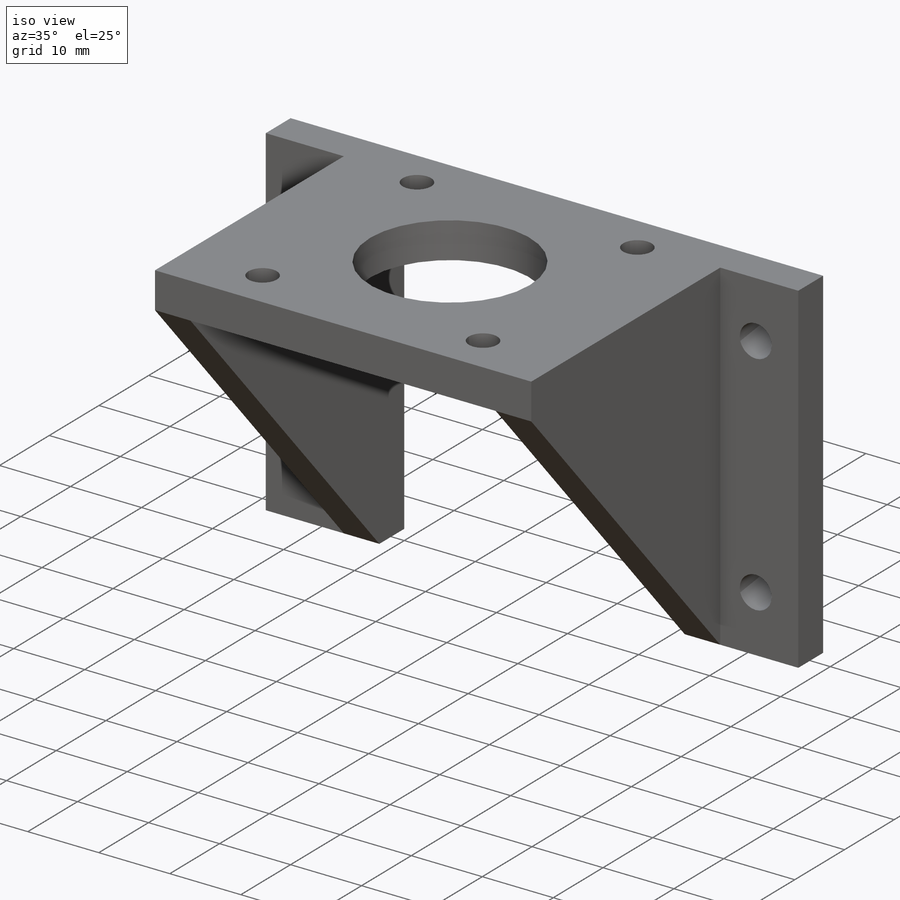
[diagram: iso view]
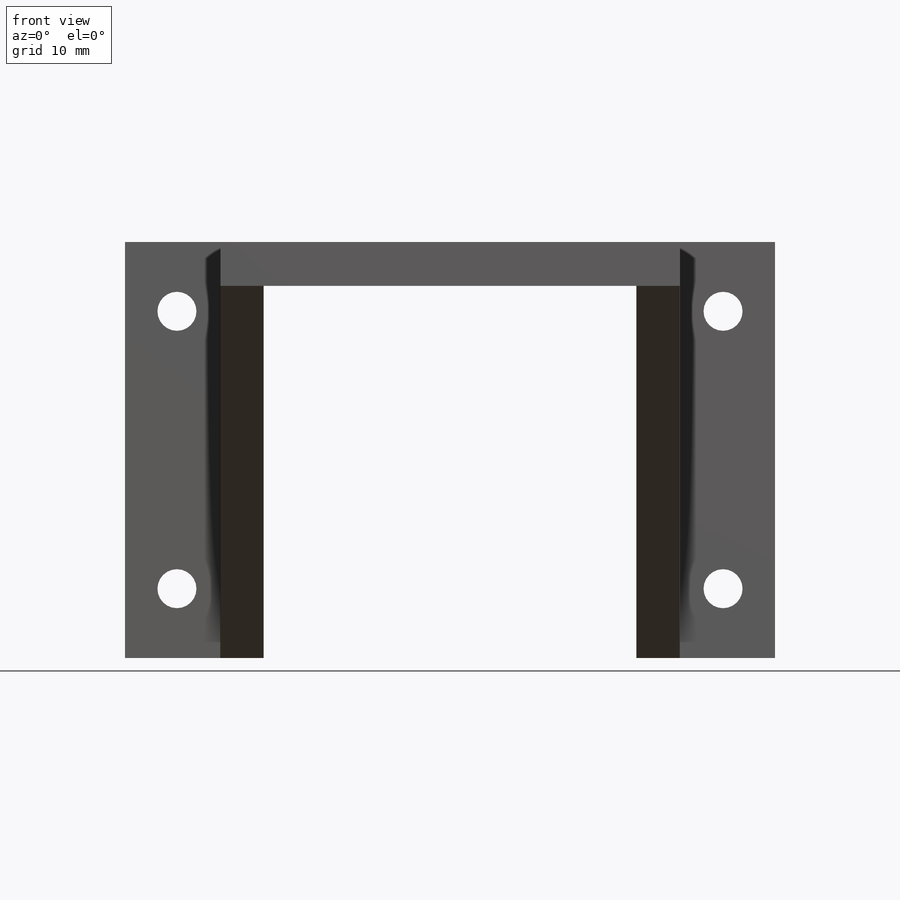
[diagram: front view]
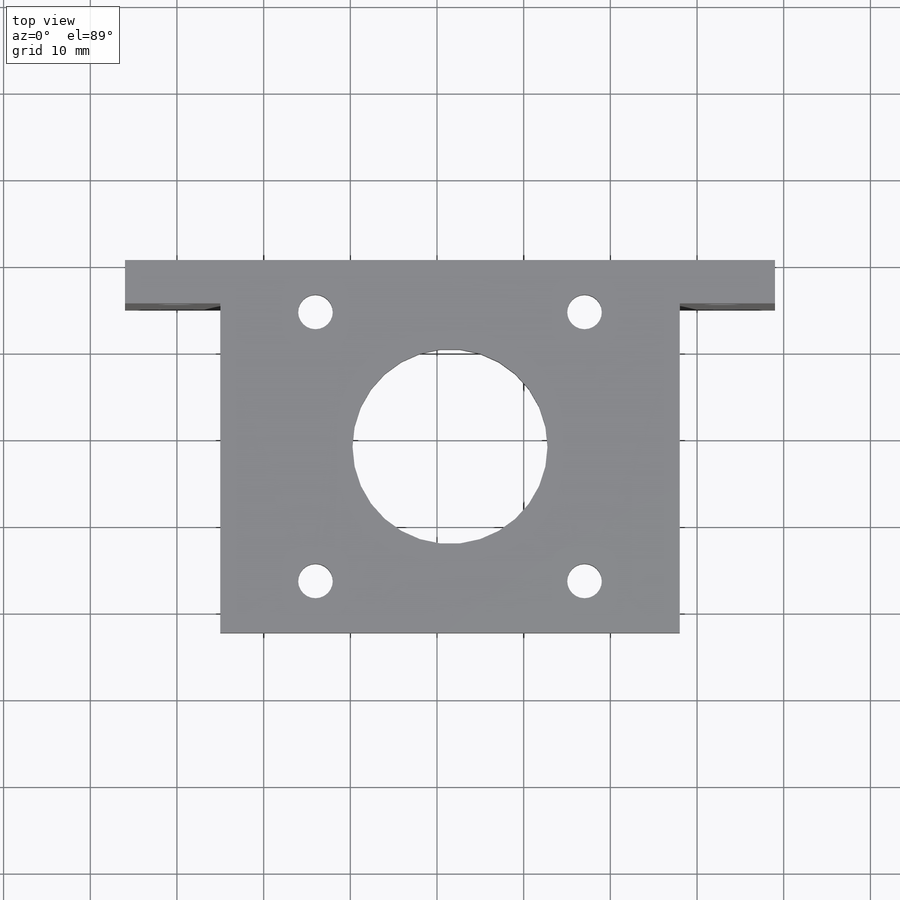
[diagram: top view]
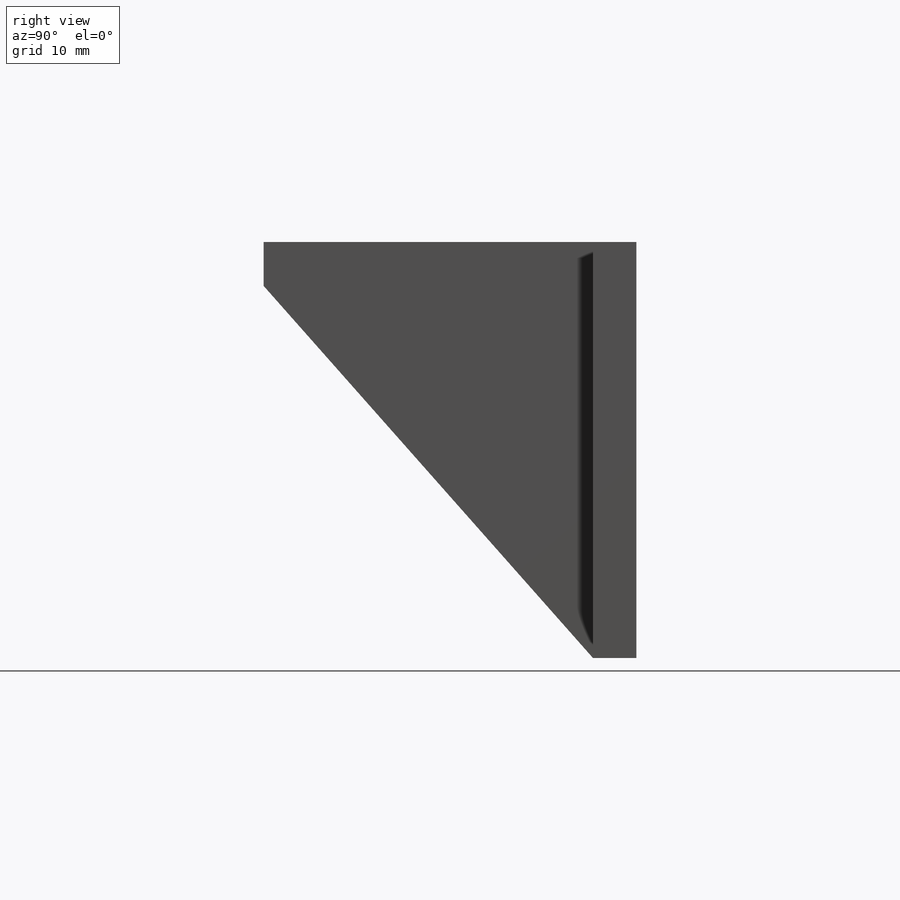
[diagram: right view]
SOLIDWORKS PART (.sldprt)
format: sldprt  version: not decoded by parser v0  size: 242,176 bytes
history: native  units: mm
features: sketch x5, extrude x4, plane x2, material x1, cut_extrude x1 (+11 scaffold rows collapsed)
feature tree (24):
  scaffold x11  (default folders/planes/origin — collapsed)
  material  "Copper"
  sketch  "Sketch1"  dims[c1.D5=0.0mm c1.D1=16.0mm c1.D2=16.0mm c1.D3=5.0mm c1.D4=43.0mm c2.D5=8.0mm c2.D6=6.0mm c2.D7=2.0 c2.D8=2.0]
  extrude  "Boss-Extrude1"  Depth=5mm
  sketch  "Sketch2"  dims[c1.D1=5.0mm c1.D2=75.0mm c2.D1=~5.069283mm c2.D2=~48.891931mm c3.D1=5.0mm c3.D2=5.0mm]
  extrude  "Boss-Extrude2"  Depth=38mm
  plane  "Plane1"  Offset=0mm
  sketch  "Sketch3"  dims[D1=38.0mm]
  extrude  "Boss-Extrude3"  Depth=5mm
  plane  "Plane2"  Offset=0mm
  sketch  "Sketch4"  dims[D1=38.0mm]
  extrude  "Boss-Extrude4"  Depth=5mm
  sketch  "Sketch5"  dims[c1.D1=22.5mm c1.D6=4.0mm c1.D2=26.5mm c1.D3=26.5mm c1.D4=21.5mm c1.D5=21.5mm c2.D6=15.52mm c2.D7=15.52mm c2.D8=2.0 c2.D9=2.0]
  cut_extrude  "Cut-Extrude1"  [1 undecoded]
decode coverage: 9 of 10 modeling features carry decoded parameters
note: ~ marks probable driven/reference dimensions
note: 1 parameter value undecoded
note: suppression state not decoded; provenance and decode notes live in map.json
